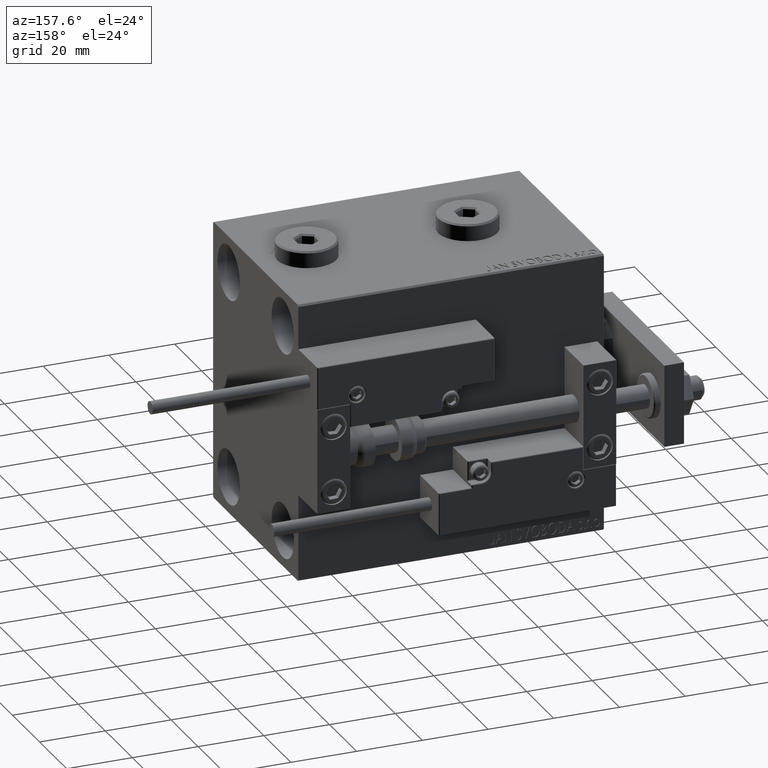
[diagram: clean part render]
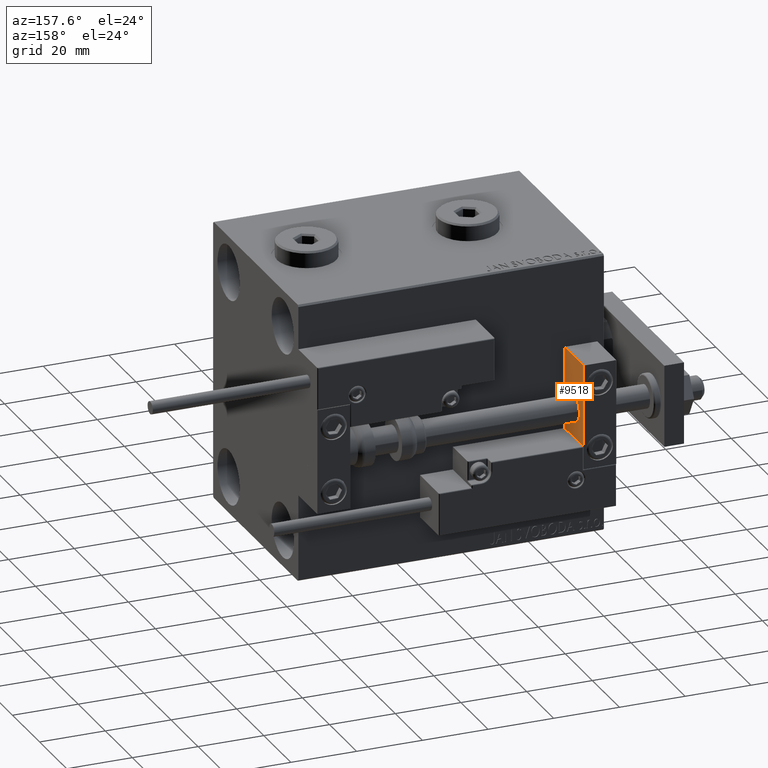
[diagram: same view with one face highlighted and labeled with its STEP entity id]
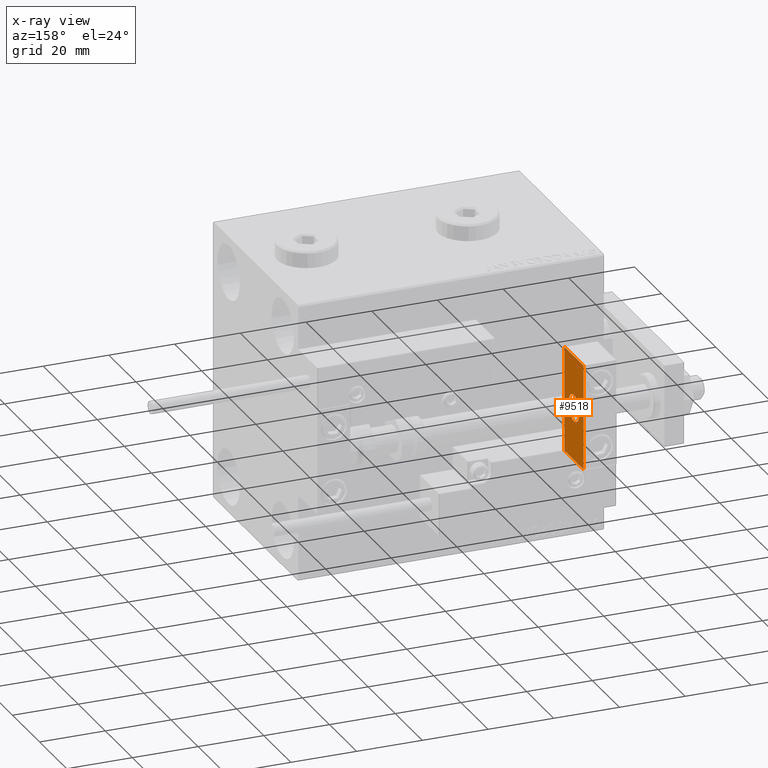
[diagram: x-ray of the same camera — body ghosted, the highlighted face saturated]
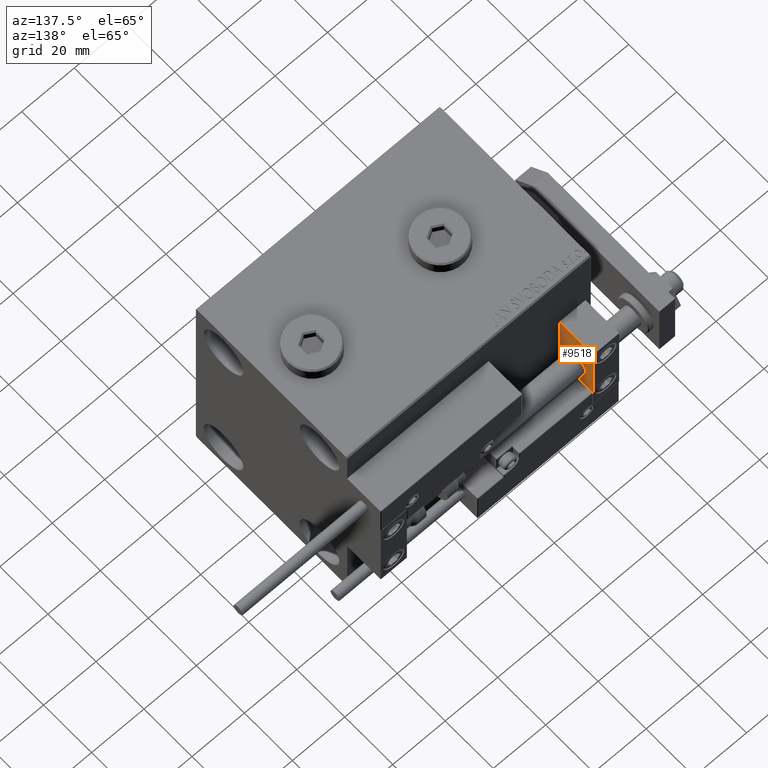
[diagram: same view with one face highlighted and labeled with its STEP entity id]
A machine part, auxiliary view. The second image highlights one B-rep face of the part: STEP entity #9518.
The next image is the same camera in x-ray: the body ghosted, the highlighted face saturated — about 0% of this face is hidden behind the body in this view.
A second angle (auxiliary view) of the same face is appended — the face is thin or edge-on in the first view.
In plain terms, the highlighted planar face has unit normal (1, 0, -0).
Its self-contained STEP definition (entity closure, byte-faithful):
#1021 = VECTOR ( 'NONE', #43094, 1000.000000000000000 ) ;
#1818 = LINE ( 'NONE', #33338, #32012 ) ;
#1997 = EDGE_CURVE ( 'NONE', #3622, #5755, #35386, .T. ) ;
#2901 = VECTOR ( 'NONE', #34435, 1000.000000000000000 ) ;
#3162 = LINE ( 'NONE', #27115, #2901 ) ;
#3622 = VERTEX_POINT ( 'NONE', #12480 ) ;
#3818 = VERTEX_POINT ( 'NONE', #25674 ) ;
#3894 = DIRECTION ( 'NONE',  ( 0.000000000000000000, 0.000000000000000000, 1.000000000000000000 ) ) ;
#4236 = ORIENTED_EDGE ( 'NONE', *, *, #45475, .F. ) ;
#5755 = VERTEX_POINT ( 'NONE', #40909 ) ;
#6751 = CARTESIAN_POINT ( 'NONE',  ( 0.000000000000000000, 0.000000000000000000, 0.000000000000000000 ) ) ;
#7896 = CARTESIAN_POINT ( 'NONE',  ( 0.000000000000000000, 7.000000000000000000, 15.99999999999999289 ) ) ;
#8457 = EDGE_LOOP ( 'NONE', ( #14318, #31395, #33701, #9497 ) ) ;
#9497 = ORIENTED_EDGE ( 'NONE', *, *, #1997, .T. ) ;
#9518 = ADVANCED_FACE ( 'NONE', ( #38301, #14847 ), #11681, .T. ) ;
#9929 = EDGE_CURVE ( 'NONE', #3818, #28821, #39186, .T. ) ;
#11408 = DIRECTION ( 'NONE',  ( 0.000000000000000000, -1.000000000000000000, 0.000000000000000000 ) ) ;
#11681 = PLANE ( 'NONE',  #15103 ) ;
#11792 = VERTEX_POINT ( 'NONE', #41848 ) ;
#12480 = CARTESIAN_POINT ( 'NONE',  ( 0.000000000000000000, 7.000000000000000000, -16.00000000000000711 ) ) ;
#12495 = DIRECTION ( 'NONE',  ( -1.000000000000000000, -0.000000000000000000, -0.000000000000000000 ) ) ;
#13037 = DIRECTION ( 'NONE',  ( 0.000000000000000000, 0.000000000000000000, -1.000000000000000000 ) ) ;
#13694 = AXIS2_PLACEMENT_3D ( 'NONE', #36214, #12495, #3894 ) ;
#14318 = ORIENTED_EDGE ( 'NONE', *, *, #20664, .F. ) ;
#14847 = FACE_OUTER_BOUND ( 'NONE', #8457, .T. ) ;
#15103 = AXIS2_PLACEMENT_3D ( 'NONE', #6751, #42217, #34637 ) ;
#16671 = EDGE_CURVE ( 'NONE', #24311, #11792, #38692, .T. ) ;
#20664 = EDGE_CURVE ( 'NONE', #28821, #5755, #1818, .T. ) ;
#21594 = EDGE_CURVE ( 'NONE', #3818, #3622, #3162, .T. ) ;
#23709 = ORIENTED_EDGE ( 'NONE', *, *, #16671, .F. ) ;
#23893 = EDGE_LOOP ( 'NONE', ( #23709, #4236 ) ) ;
#24311 = VERTEX_POINT ( 'NONE', #27761 ) ;
#25674 = CARTESIAN_POINT ( 'NONE',  ( 0.000000000000000000, 7.000000000000000000, 15.99999999999999289 ) ) ;
#27115 = CARTESIAN_POINT ( 'NONE',  ( 0.000000000000000000, 7.000000000000000000, 15.99999999999999289 ) ) ;
#27761 = CARTESIAN_POINT ( 'NONE',  ( 0.000000000000000000, 0.000000000000000000, 4.000000000000000000 ) ) ;
#28821 = VERTEX_POINT ( 'NONE', #45114 ) ;
#29946 = DIRECTION ( 'NONE',  ( -1.000000000000000000, -0.000000000000000000, -0.000000000000000000 ) ) ;
#30971 = VECTOR ( 'NONE', #11408, 1000.000000000000000 ) ;
#31395 = ORIENTED_EDGE ( 'NONE', *, *, #9929, .F. ) ;
#32012 = VECTOR ( 'NONE', #13037, 1000.000000000000000 ) ;
#33338 = CARTESIAN_POINT ( 'NONE',  ( 0.000000000000000000, -7.000000000000000000, 15.99999999999999289 ) ) ;
#33701 = ORIENTED_EDGE ( 'NONE', *, *, #21594, .T. ) ;
#34435 = DIRECTION ( 'NONE',  ( 0.000000000000000000, 0.000000000000000000, -1.000000000000000000 ) ) ;
#34637 = DIRECTION ( 'NONE',  ( -0.000000000000000000, 0.000000000000000000, 1.000000000000000000 ) ) ;
#35386 = LINE ( 'NONE', #46368, #30971 ) ;
#36214 = CARTESIAN_POINT ( 'NONE',  ( 0.000000000000000000, 0.000000000000000000, 0.000000000000000000 ) ) ;
#38301 = FACE_BOUND ( 'NONE', #23893, .T. ) ;
#38692 = CIRCLE ( 'NONE', #13694, 4.000000000000000000 ) ;
#39186 = LINE ( 'NONE', #7896, #1021 ) ;
#40909 = CARTESIAN_POINT ( 'NONE',  ( 0.000000000000000000, -7.000000000000000000, -16.00000000000000711 ) ) ;
#41848 = CARTESIAN_POINT ( 'NONE',  ( 0.000000000000000000, 4.898587196589412829E-16, -4.000000000000000000 ) ) ;
#41946 = DIRECTION ( 'NONE',  ( 0.000000000000000000, 0.000000000000000000, 1.000000000000000000 ) ) ;
#42217 = DIRECTION ( 'NONE',  ( -1.000000000000000000, 0.000000000000000000, -0.000000000000000000 ) ) ;
#43094 = DIRECTION ( 'NONE',  ( 0.000000000000000000, -1.000000000000000000, 0.000000000000000000 ) ) ;
#43894 = AXIS2_PLACEMENT_3D ( 'NONE', #44836, #29946, #41946 ) ;
#44836 = CARTESIAN_POINT ( 'NONE',  ( 0.000000000000000000, 0.000000000000000000, 0.000000000000000000 ) ) ;
#45114 = CARTESIAN_POINT ( 'NONE',  ( 0.000000000000000000, -7.000000000000000000, 15.99999999999999289 ) ) ;
#45475 = EDGE_CURVE ( 'NONE', #11792, #24311, #48072, .T. ) ;
#46368 = CARTESIAN_POINT ( 'NONE',  ( 0.000000000000000000, 7.000000000000000000, -16.00000000000000711 ) ) ;
#48072 = CIRCLE ( 'NONE', #43894, 4.000000000000000000 ) ;